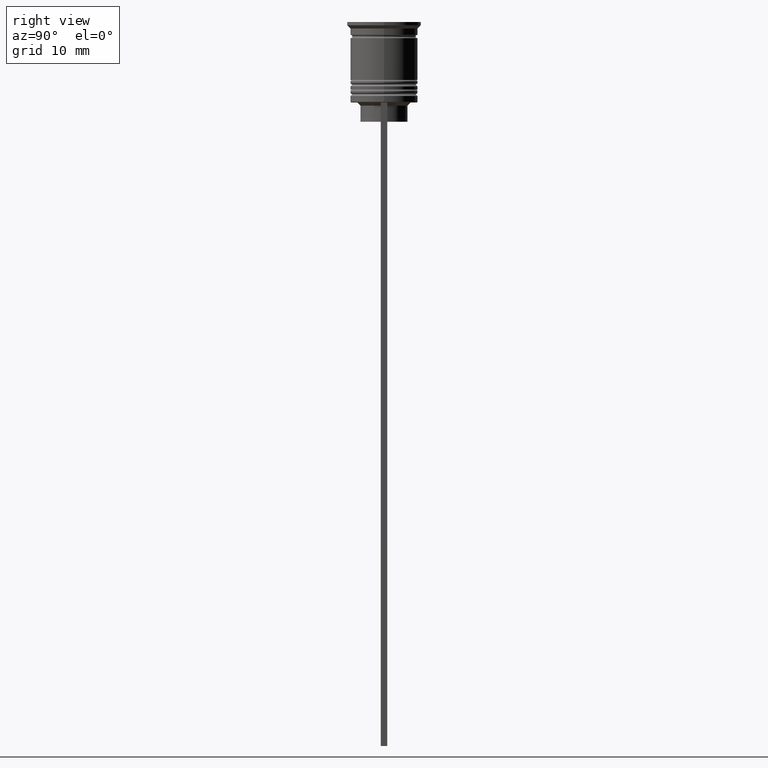
[diagram: clean part render]
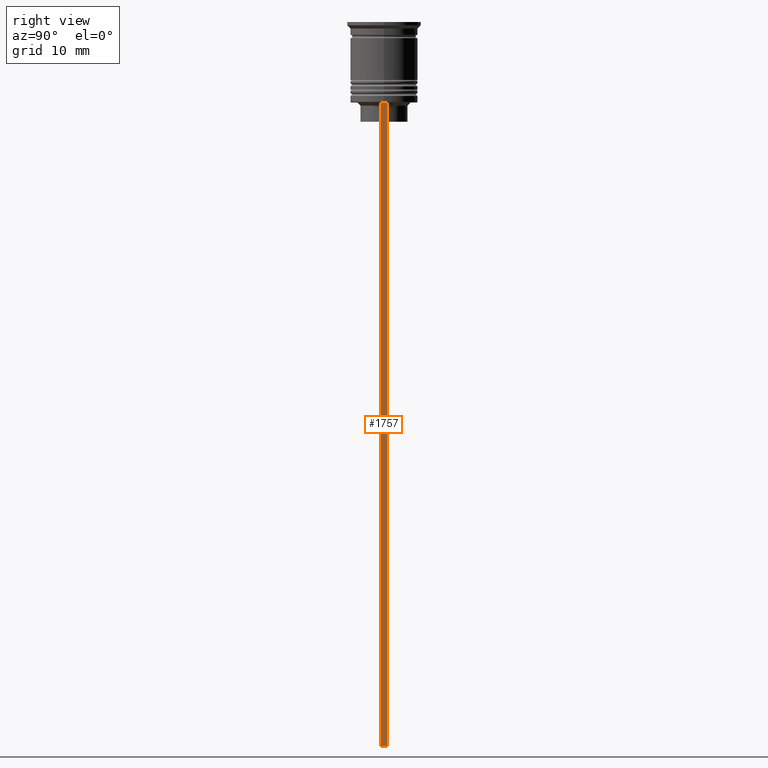
[diagram: same view with one face highlighted and labeled with its STEP entity id]
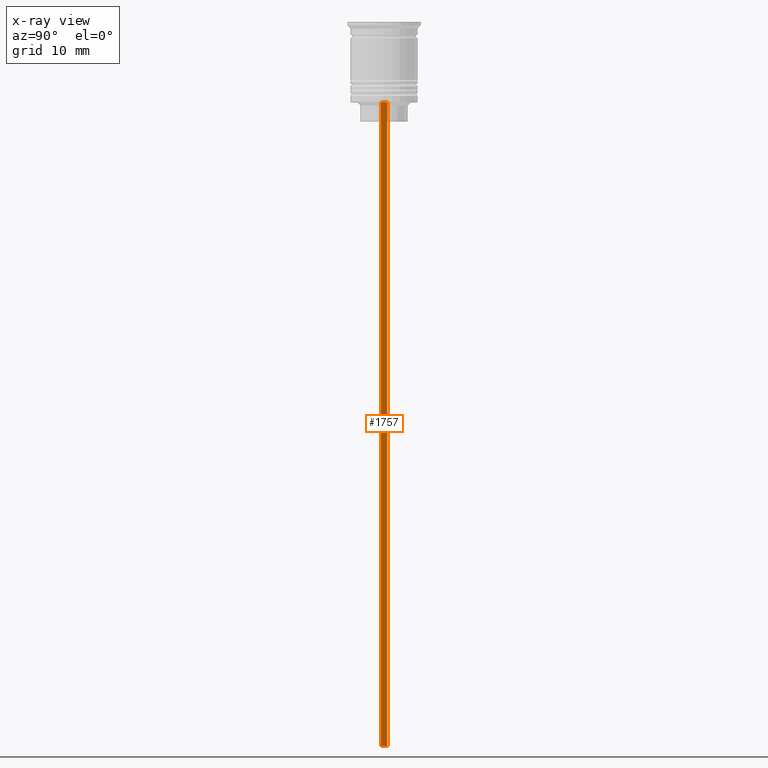
[diagram: x-ray of the same camera — body ghosted, the highlighted face saturated]
A machine part, right view. The second image highlights one B-rep face of the part: STEP entity #1757.
The next image is the same camera in x-ray: the body ghosted, the highlighted face saturated — about 0% of this face is hidden behind the body in this view.
In plain terms, the highlighted planar face has unit normal (-1, 0, 0).
Its self-contained STEP definition (entity closure, byte-faithful):
#84 = DIRECTION ( 'NONE',  ( 0.000000000000000000, 1.000000000000000000, 0.000000000000000000 ) ) ;
#111 = CARTESIAN_POINT ( 'NONE',  ( 5.000000000000000000, -0.5000000000000008882, -2.450124378879110054 ) ) ;
#157 = CARTESIAN_POINT ( 'NONE',  ( 5.000000000000000000, 0.4999999999999991673, -112.5000000000000000 ) ) ;
#159 = CARTESIAN_POINT ( 'NONE',  ( 5.000000000000000000, -0.5000000000000008882, -112.5000000000000000 ) ) ;
#215 = FACE_OUTER_BOUND ( 'NONE', #1179, .T. ) ;
#236 = CARTESIAN_POINT ( 'NONE',  ( 5.000000000000000000, -0.5000000000000008882, -112.5000000000000000 ) ) ;
#245 = LINE ( 'NONE', #111, #495 ) ;
#299 = EDGE_CURVE ( 'NONE', #1648, #2068, #615, .T. ) ;
#420 = CARTESIAN_POINT ( 'NONE',  ( 5.000000000000000000, 0.4999999999999991673, -2.450124378879110054 ) ) ;
#495 = VECTOR ( 'NONE', #616, 1000.000000000000000 ) ;
#502 = CARTESIAN_POINT ( 'NONE',  ( 5.000000000000000000, 0.4999999999999991673, -12.50000000000000000 ) ) ;
#586 = DIRECTION ( 'NONE',  ( 0.000000000000000000, 0.000000000000000000, -1.000000000000000000 ) ) ;
#615 = LINE ( 'NONE', #236, #1036 ) ;
#616 = DIRECTION ( 'NONE',  ( 0.000000000000000000, 0.000000000000000000, -1.000000000000000000 ) ) ;
#699 = LINE ( 'NONE', #1595, #2267 ) ;
#747 = AXIS2_PLACEMENT_3D ( 'NONE', #1487, #897, #1113 ) ;
#897 = DIRECTION ( 'NONE',  ( -1.000000000000000000, 0.000000000000000000, 0.000000000000000000 ) ) ;
#1036 = VECTOR ( 'NONE', #84, 1000.000000000000000 ) ;
#1057 = ORIENTED_EDGE ( 'NONE', *, *, #299, .T. ) ;
#1074 = CARTESIAN_POINT ( 'NONE',  ( 5.000000000000000000, -0.5000000000000008882, -12.50000000000000000 ) ) ;
#1113 = DIRECTION ( 'NONE',  ( 0.000000000000000000, 0.000000000000000000, 1.000000000000000000 ) ) ;
#1123 = VERTEX_POINT ( 'NONE', #502 ) ;
#1179 = EDGE_LOOP ( 'NONE', ( #1825, #1629, #1770, #1057 ) ) ;
#1296 = PLANE ( 'NONE',  #747 ) ;
#1339 = EDGE_CURVE ( 'NONE', #1123, #2068, #2020, .T. ) ;
#1487 = CARTESIAN_POINT ( 'NONE',  ( 5.000000000000000000, -0.5000000000000008882, -2.450124378879110054 ) ) ;
#1595 = CARTESIAN_POINT ( 'NONE',  ( 5.000000000000000000, -0.5000000000000008882, -12.50000000000000000 ) ) ;
#1607 = DIRECTION ( 'NONE',  ( 0.000000000000000000, -1.000000000000000000, 0.000000000000000000 ) ) ;
#1629 = ORIENTED_EDGE ( 'NONE', *, *, #1663, .T. ) ;
#1648 = VERTEX_POINT ( 'NONE', #159 ) ;
#1663 = EDGE_CURVE ( 'NONE', #1123, #2214, #699, .T. ) ;
#1757 = ADVANCED_FACE ( 'NONE', ( #215 ), #1296, .F. ) ;
#1770 = ORIENTED_EDGE ( 'NONE', *, *, #2021, .T. ) ;
#1825 = ORIENTED_EDGE ( 'NONE', *, *, #1339, .F. ) ;
#2020 = LINE ( 'NONE', #420, #2304 ) ;
#2021 = EDGE_CURVE ( 'NONE', #2214, #1648, #245, .T. ) ;
#2068 = VERTEX_POINT ( 'NONE', #157 ) ;
#2214 = VERTEX_POINT ( 'NONE', #1074 ) ;
#2267 = VECTOR ( 'NONE', #1607, 1000.000000000000000 ) ;
#2304 = VECTOR ( 'NONE', #586, 1000.000000000000000 ) ;